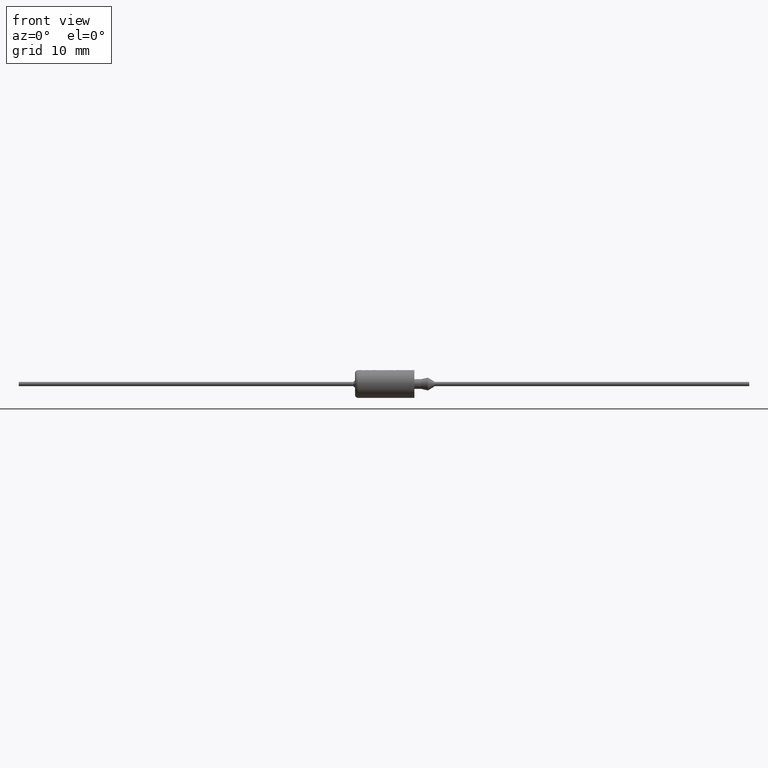
[diagram: clean part render]
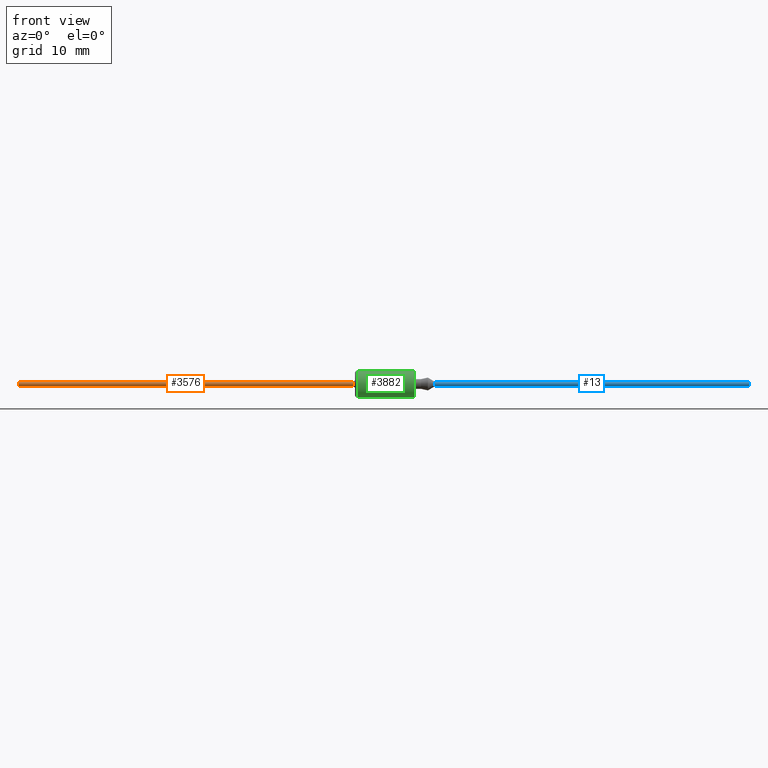
[diagram: same view with three faces highlighted in distinct colors, each labeled with its STEP entity id]
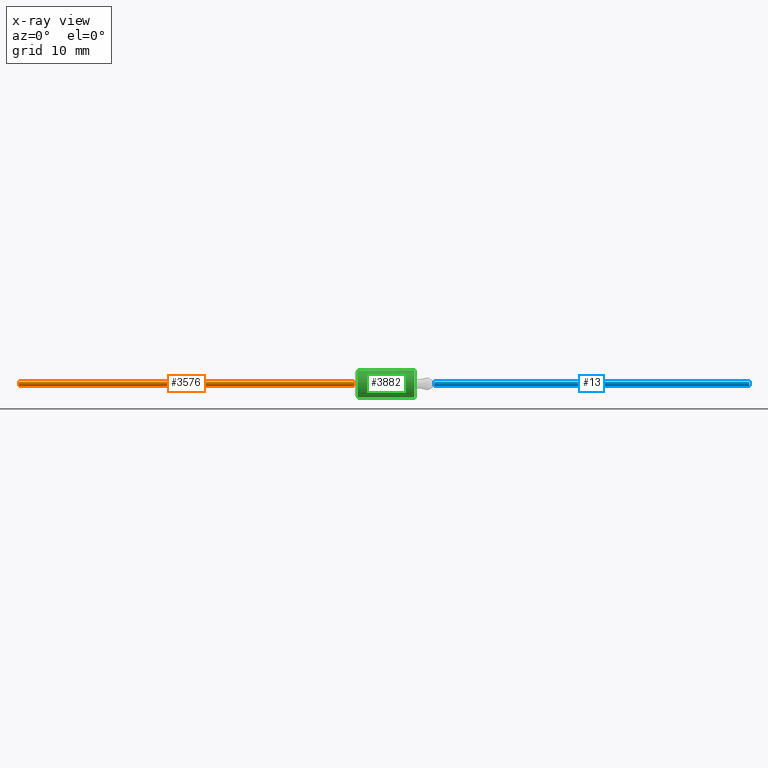
[diagram: x-ray of the same camera — body ghosted, the three highlighted faces saturated]
A machine part, front view with three faces highlighted in distinct colors.
The next image is the same camera in x-ray (body ghosted, the three faces saturated) — at least one of them is partly hidden behind the body in this view.
Their STEP definitions:

[orange] entity #3576 — the highlighted cylindrical surface (edge-blend (fillet) strip) has radius 0.28 mm, axis along (1, -0, -0).
#324 = FACE_OUTER_BOUND ( 'NONE', #1618, .T. ) ;
#480 = DIRECTION ( 'NONE',  ( 0.0000000000000000000, 0.0000000000000000000, 1.000000000000000000 ) ) ;
#537 = EDGE_CURVE ( 'NONE', #4257, #1646, #3640, .T. ) ;
#587 = EDGE_CURVE ( 'NONE', #870, #4257, #3962, .T. ) ;
#652 = DIRECTION ( 'NONE',  ( -1.000000000000000000, 0.0000000000000000000, 0.0000000000000000000 ) ) ;
#684 = AXIS2_PLACEMENT_3D ( 'NONE', #3019, #652, #4046 ) ;
#870 = VERTEX_POINT ( 'NONE', #4342 ) ;
#924 = CYLINDRICAL_SURFACE ( 'NONE', #2526, 0.2800000000000000300 ) ;
#1010 = CARTESIAN_POINT ( 'NONE',  ( -44.61999999999999700, 0.0000000000000000000, -0.2800000000000000300 ) ) ;
#1064 = CIRCLE ( 'NONE', #1939, 0.2800000000000000300 ) ;
#1223 = VERTEX_POINT ( 'NONE', #1898 ) ;
#1337 = LINE ( 'NONE', #3779, #3528 ) ;
#1517 = CARTESIAN_POINT ( 'NONE',  ( -44.61999999999999700, 0.0000000000000000000, 0.0000000000000000000 ) ) ;
#1546 = CARTESIAN_POINT ( 'NONE',  ( -0.1699999999999999800, 0.0000000000000000000, -0.2800000000000000300 ) ) ;
#1618 = EDGE_LOOP ( 'NONE', ( #1683, #3651, #3462, #4352 ) ) ;
#1646 = VERTEX_POINT ( 'NONE', #3335 ) ;
#1683 = ORIENTED_EDGE ( 'NONE', *, *, #2130, .F. ) ;
#1702 = DIRECTION ( 'NONE',  ( 1.000000000000000000, -0.0000000000000000000, -0.0000000000000000000 ) ) ;
#1898 = CARTESIAN_POINT ( 'NONE',  ( -44.61999999999999700, 3.429011037612589400E-017, 0.2800000000000000300 ) ) ;
#1939 = AXIS2_PLACEMENT_3D ( 'NONE', #1517, #2574, #480 ) ;
#1945 = CARTESIAN_POINT ( 'NONE',  ( -44.61999999999999700, 0.0000000000000000000, 0.0000000000000000000 ) ) ;
#2130 = EDGE_CURVE ( 'NONE', #1223, #1646, #1337, .T. ) ;
#2526 = AXIS2_PLACEMENT_3D ( 'NONE', #1945, #2604, #3975 ) ;
#2574 = DIRECTION ( 'NONE',  ( -1.000000000000000000, 0.0000000000000000000, 0.0000000000000000000 ) ) ;
#2604 = DIRECTION ( 'NONE',  ( 1.000000000000000000, -0.0000000000000000000, -0.0000000000000000000 ) ) ;
#2688 = EDGE_CURVE ( 'NONE', #870, #1223, #1064, .T. ) ;
#2830 = DIRECTION ( 'NONE',  ( 1.000000000000000000, -0.0000000000000000000, -0.0000000000000000000 ) ) ;
#3019 = CARTESIAN_POINT ( 'NONE',  ( -0.1699999999999999800, 0.0000000000000000000, 0.0000000000000000000 ) ) ;
#3335 = CARTESIAN_POINT ( 'NONE',  ( -0.1699999999999999800, 3.429011037612589400E-017, 0.2800000000000000300 ) ) ;
#3462 = ORIENTED_EDGE ( 'NONE', *, *, #587, .T. ) ;
#3528 = VECTOR ( 'NONE', #2830, 1000.000000000000000 ) ;
#3576 = ADVANCED_FACE ( 'NONE', ( #324 ), #924, .T. ) ;
#3640 = CIRCLE ( 'NONE', #684, 0.2800000000000000300 ) ;
#3651 = ORIENTED_EDGE ( 'NONE', *, *, #2688, .F. ) ;
#3779 = CARTESIAN_POINT ( 'NONE',  ( -44.61999999999999700, 3.429011037612589400E-017, 0.2800000000000000300 ) ) ;
#3962 = LINE ( 'NONE', #1010, #4070 ) ;
#3975 = DIRECTION ( 'NONE',  ( 0.0000000000000000000, 0.0000000000000000000, -1.000000000000000000 ) ) ;
#4046 = DIRECTION ( 'NONE',  ( 0.0000000000000000000, 0.0000000000000000000, 1.000000000000000000 ) ) ;
#4070 = VECTOR ( 'NONE', #1702, 1000.000000000000000 ) ;
#4257 = VERTEX_POINT ( 'NONE', #1546 ) ;
#4342 = CARTESIAN_POINT ( 'NONE',  ( -44.61999999999999700, 0.0000000000000000000, -0.2800000000000000300 ) ) ;
#4352 = ORIENTED_EDGE ( 'NONE', *, *, #537, .T. ) ;

[blue] entity #13 — the highlighted cylindrical surface (edge-blend (fillet) strip) has radius 0.28 mm, axis along (-1, -0, -0).
#13 = ADVANCED_FACE ( 'NONE', ( #2301 ), #946, .T. ) ;
#271 = DIRECTION ( 'NONE',  ( 1.000000000000000000, 0.0000000000000000000, 0.0000000000000000000 ) ) ;
#331 = AXIS2_PLACEMENT_3D ( 'NONE', #2335, #271, #2652 ) ;
#354 = EDGE_CURVE ( 'NONE', #4312, #1460, #2498, .T. ) ;
#364 = ORIENTED_EDGE ( 'NONE', *, *, #1739, .T. ) ;
#395 = ORIENTED_EDGE ( 'NONE', *, *, #874, .F. ) ;
#648 = EDGE_CURVE ( 'NONE', #4312, #1622, #3863, .T. ) ;
#874 = EDGE_CURVE ( 'NONE', #1622, #3673, #3964, .T. ) ;
#885 = CIRCLE ( 'NONE', #1150, 0.2800000000000000300 ) ;
#946 = CYLINDRICAL_SURFACE ( 'NONE', #1487, 0.2800000000000000300 ) ;
#1150 = AXIS2_PLACEMENT_3D ( 'NONE', #3629, #1613, #1957 ) ;
#1186 = ORIENTED_EDGE ( 'NONE', *, *, #648, .F. ) ;
#1460 = VERTEX_POINT ( 'NONE', #3442 ) ;
#1484 = VECTOR ( 'NONE', #1747, 1000.000000000000000 ) ;
#1487 = AXIS2_PLACEMENT_3D ( 'NONE', #3625, #2300, #1623 ) ;
#1568 = CARTESIAN_POINT ( 'NONE',  ( 52.32999999999999800, 0.0000000000000000000, 0.2800000000000000300 ) ) ;
#1613 = DIRECTION ( 'NONE',  ( 1.000000000000000000, 0.0000000000000000000, 0.0000000000000000000 ) ) ;
#1622 = VERTEX_POINT ( 'NONE', #2290 ) ;
#1623 = DIRECTION ( 'NONE',  ( 0.0000000000000000000, 0.0000000000000000000, 1.000000000000000000 ) ) ;
#1739 = EDGE_CURVE ( 'NONE', #1460, #3673, #885, .T. ) ;
#1747 = DIRECTION ( 'NONE',  ( -1.000000000000000000, -0.0000000000000000000, -0.0000000000000000000 ) ) ;
#1957 = DIRECTION ( 'NONE',  ( 0.0000000000000000000, 0.0000000000000000000, -1.000000000000000000 ) ) ;
#2290 = CARTESIAN_POINT ( 'NONE',  ( 52.32999999999999800, 3.429011037612589400E-017, -0.2800000000000000300 ) ) ;
#2300 = DIRECTION ( 'NONE',  ( -1.000000000000000000, -0.0000000000000000000, -0.0000000000000000000 ) ) ;
#2301 = FACE_OUTER_BOUND ( 'NONE', #3449, .T. ) ;
#2335 = CARTESIAN_POINT ( 'NONE',  ( 52.32999999999999800, 0.0000000000000000000, 0.0000000000000000000 ) ) ;
#2498 = LINE ( 'NONE', #4125, #1484 ) ;
#2652 = DIRECTION ( 'NONE',  ( 0.0000000000000000000, 0.0000000000000000000, -1.000000000000000000 ) ) ;
#3022 = DIRECTION ( 'NONE',  ( -1.000000000000000000, -0.0000000000000000000, -0.0000000000000000000 ) ) ;
#3081 = VECTOR ( 'NONE', #3022, 1000.000000000000000 ) ;
#3442 = CARTESIAN_POINT ( 'NONE',  ( 10.55000000000000200, 0.0000000000000000000, 0.2800000000000000300 ) ) ;
#3449 = EDGE_LOOP ( 'NONE', ( #395, #1186, #3996, #364 ) ) ;
#3625 = CARTESIAN_POINT ( 'NONE',  ( 52.32999999999999800, 0.0000000000000000000, 0.0000000000000000000 ) ) ;
#3629 = CARTESIAN_POINT ( 'NONE',  ( 10.55000000000000200, 0.0000000000000000000, 0.0000000000000000000 ) ) ;
#3664 = CARTESIAN_POINT ( 'NONE',  ( 52.32999999999999800, 3.429011037612589400E-017, -0.2800000000000000300 ) ) ;
#3673 = VERTEX_POINT ( 'NONE', #4343 ) ;
#3863 = CIRCLE ( 'NONE', #331, 0.2800000000000000300 ) ;
#3964 = LINE ( 'NONE', #3664, #3081 ) ;
#3996 = ORIENTED_EDGE ( 'NONE', *, *, #354, .T. ) ;
#4125 = CARTESIAN_POINT ( 'NONE',  ( 52.32999999999999800, 0.0000000000000000000, 0.2800000000000000300 ) ) ;
#4312 = VERTEX_POINT ( 'NONE', #1568 ) ;
#4343 = CARTESIAN_POINT ( 'NONE',  ( 10.55000000000000200, 3.429011037612589400E-017, -0.2800000000000000300 ) ) ;

[green] entity #3882 — the highlighted cylindrical surface (edge-blend (fillet) strip) has radius 1.84 mm, axis along (-1, -0, -0).
#3 = CARTESIAN_POINT ( 'NONE',  ( 3.610336656415432400, -0.1669809780252438100, 1.839761919890829500 ) ) ;
#7 = VERTEX_POINT ( 'NONE', #967 ) ;
#12 = CARTESIAN_POINT ( 'NONE',  ( 3.939984700960379000, -0.3338449827319022700, 1.817184786276131700 ) ) ;
#16 = ORIENTED_EDGE ( 'NONE', *, *, #1803, .F. ) ;
#23 = VERTEX_POINT ( 'NONE', #928 ) ;
#28 = EDGE_CURVE ( 'NONE', #720, #2630, #3366, .T. ) ;
#31 = B_SPLINE_CURVE_WITH_KNOTS ( 'NONE', 3,
 ( #3865, #1853, #428, #2198 ),
 .UNSPECIFIED., .F., .F.,
 ( 4, 4 ),
 ( 0.4414835254606975200, 1.000000000000000000 ),
 .UNSPECIFIED. ) ;
#32 = CARTESIAN_POINT ( 'NONE',  ( 4.947171056527291300, -0.4950444796869384300, 1.772154328248950300 ) ) ;
#56 = DIRECTION ( 'NONE',  ( 1.000000000000000000, 0.0000000000000000000, 0.0000000000000000000 ) ) ;
#67 = ORIENTED_EDGE ( 'NONE', *, *, #1870, .F. ) ;
#69 = CARTESIAN_POINT ( 'NONE',  ( 7.880000000000001700, 0.0000000000000000000, 1.840000000000000100 ) ) ;
#83 = LINE ( 'NONE', #1305, #2377 ) ;
#126 = DIRECTION ( 'NONE',  ( 0.0000000000000000000, 0.0000000000000000000, -1.000000000000000000 ) ) ;
#131 = CARTESIAN_POINT ( 'NONE',  ( 3.914628524202696800, -2.048666033496737600E-008, 1.839846082543360500 ) ) ;
#141 = EDGE_CURVE ( 'NONE', #3639, #2630, #2029, .T. ) ;
#147 = VERTEX_POINT ( 'NONE', #3977 ) ;
#151 = CARTESIAN_POINT ( 'NONE',  ( 2.641702550035737400, -0.4950444796869384300, 1.772154328248950300 ) ) ;
#152 = DIRECTION ( 'NONE',  ( 1.000000000000000000, 0.0000000000000000000, 0.0000000000000000000 ) ) ;
#162 = CARTESIAN_POINT ( 'NONE',  ( 4.707904748187332600, -0.3079404732484836700, 1.814048694201867400 ) ) ;
#187 = B_SPLINE_CURVE_WITH_KNOTS ( 'NONE', 3,
 ( #3232, #1578, #840, #3574 ),
 .UNSPECIFIED., .F., .F.,
 ( 4, 4 ),
 ( 0.0000000000000000000, 1.000000000000000000 ),
 .UNSPECIFIED. ) ;
#218 = DIRECTION ( 'NONE',  ( -1.000000000000000000, -0.0000000000000000000, -0.0000000000000000000 ) ) ;
#264 = EDGE_CURVE ( 'NONE', #4152, #3268, #2278, .T. ) ;
#266 = ORIENTED_EDGE ( 'NONE', *, *, #826, .T. ) ;
#289 = CARTESIAN_POINT ( 'NONE',  ( 3.818644339186226100, -0.3338449689229003300, 1.817184790133623100 ) ) ;
#294 = CARTESIAN_POINT ( 'NONE',  ( 4.947171056527291300, -0.4950444796869384300, 1.772154328248950300 ) ) ;
#312 = DIRECTION ( 'NONE',  ( -1.000000000000000000, -0.0000000000000000000, -0.0000000000000000000 ) ) ;
#336 = CARTESIAN_POINT ( 'NONE',  ( 0.4000000000000001900, 2.253350110431129800E-016, -1.840000000000000100 ) ) ;
#350 = LINE ( 'NONE', #890, #2747 ) ;
#394 = CARTESIAN_POINT ( 'NONE',  ( 1.735129680208025600, -0.4950444796869384300, 1.772154328248950300 ) ) ;
#398 = ORIENTED_EDGE ( 'NONE', *, *, #1920, .F. ) ;
#406 = CARTESIAN_POINT ( 'NONE',  ( 1.248861027439441600, -0.3340997468915223300, 1.817113618890294500 ) ) ;
#407 = AXIS2_PLACEMENT_3D ( 'NONE', #2748, #2442, #2111 ) ;
#428 = CARTESIAN_POINT ( 'NONE',  ( 3.037896799488513500, -0.3339188745447122500, 1.817164144883086900 ) ) ;
#438 = VERTEX_POINT ( 'NONE', #131 ) ;
#446 = DIRECTION ( 'NONE',  ( -1.000000000000000000, -0.0000000000000000000, -0.0000000000000000000 ) ) ;
#448 = EDGE_CURVE ( 'NONE', #3474, #4247, #2483, .T. ) ;
#468 = CARTESIAN_POINT ( 'NONE',  ( 4.743048282823592000, -0.03925802593109178900, 1.839685872154034100 ) ) ;
#478 = VECTOR ( 'NONE', #3313, 1000.000000000000000 ) ;
#503 = AXIS2_PLACEMENT_3D ( 'NONE', #2605, #4323, #1260 ) ;
#527 = VERTEX_POINT ( 'NONE', #1538 ) ;
#545 = CARTESIAN_POINT ( 'NONE',  ( 1.414902557476005900, 2.458944981940675600E-008, 1.839998400632419700 ) ) ;
#556 = CARTESIAN_POINT ( 'NONE',  ( 0.7967368807645235400, -2.047476104401469700E-008, 1.839846085404367700 ) ) ;
#558 = VECTOR ( 'NONE', #2509, 1000.000000000000000 ) ;
#589 = CARTESIAN_POINT ( 'NONE',  ( 0.6526948067485339700, -0.4950444796869384300, 1.772154328248950500 ) ) ;
#624 = ORIENTED_EDGE ( 'NONE', *, *, #851, .T. ) ;
#633 = CARTESIAN_POINT ( 'NONE',  ( 7.880000000000001700, 0.0000000000000000000, 1.840000000000000100 ) ) ;
#646 = CARTESIAN_POINT ( 'NONE',  ( 0.4000000000000001900, 0.0000000000000000000, 1.840000000000000100 ) ) ;
#653 = VERTEX_POINT ( 'NONE', #2697 ) ;
#675 = VECTOR ( 'NONE', #3439, 1000.000000000000000 ) ;
#690 = ORIENTED_EDGE ( 'NONE', *, *, #3718, .F. ) ;
#700 = DIRECTION ( 'NONE',  ( -1.000000000000000000, -0.0000000000000000000, -0.0000000000000000000 ) ) ;
#720 = VERTEX_POINT ( 'NONE', #4082 ) ;
#723 = CARTESIAN_POINT ( 'NONE',  ( 1.735129680208025600, -0.4950444796869384300, 1.772154328248950300 ) ) ;
#751 = CARTESIAN_POINT ( 'NONE',  ( 1.114748931076166000, 2.327949607153059500E-008, 1.839998402098288900 ) ) ;
#773 = CARTESIAN_POINT ( 'NONE',  ( 1.831326895485177100, -0.1669213878654337000, 1.839694467969701800 ) ) ;
#780 = VECTOR ( 'NONE', #1357, 1000.000000000000000 ) ;
#826 = EDGE_CURVE ( 'NONE', #1829, #438, #2499, .T. ) ;
#840 = CARTESIAN_POINT ( 'NONE',  ( 4.281052528404723400, -0.1423381916653010400, 1.836385781934977100 ) ) ;
#849 = ORIENTED_EDGE ( 'NONE', *, *, #1327, .F. ) ;
#851 = EDGE_CURVE ( 'NONE', #3948, #1998, #990, .T. ) ;
#863 = VERTEX_POINT ( 'NONE', #2640 ) ;
#871 = VERTEX_POINT ( 'NONE', #980 ) ;
#873 = LINE ( 'NONE', #3698, #1740 ) ;
#890 = CARTESIAN_POINT ( 'NONE',  ( 7.880000000000001700, 2.253350110431129800E-016, -1.840000000000000100 ) ) ;
#894 = B_SPLINE_CURVE_WITH_KNOTS ( 'NONE', 3,
 ( #3958, #1627, #4308, #4322 ),
 .UNSPECIFIED., .F., .F.,
 ( 4, 4 ),
 ( 0.0000000000000000000, 0.5558340392178818800 ),
 .UNSPECIFIED. ) ;
#928 = CARTESIAN_POINT ( 'NONE',  ( 1.622661293356938600, -0.4950444796869384300, 1.772154328248950300 ) ) ;
#959 = DIRECTION ( 'NONE',  ( 1.000000000000000000, 0.0000000000000000000, 0.0000000000000000000 ) ) ;
#963 = VERTEX_POINT ( 'NONE', #394 ) ;
#967 = CARTESIAN_POINT ( 'NONE',  ( 7.880000000000001700, 2.253350110431129800E-016, -1.840000000000000100 ) ) ;
#980 = CARTESIAN_POINT ( 'NONE',  ( 4.233375229108257400, -0.3079404732484836700, 1.814048694201867400 ) ) ;
#990 = LINE ( 'NONE', #2656, #1424 ) ;
#998 = VECTOR ( 'NONE', #3688, 1000.000000000000000 ) ;
#1003 = VERTEX_POINT ( 'NONE', #1060 ) ;
#1009 = CARTESIAN_POINT ( 'NONE',  ( 2.917103915189497100, -0.1669831286195373200, 1.839764671092533700 ) ) ;
#1022 = EDGE_CURVE ( 'NONE', #3099, #2158, #2997, .T. ) ;
#1060 = CARTESIAN_POINT ( 'NONE',  ( 0.9393454066262095800, -0.4950444796869384300, 1.772154328248950300 ) ) ;
#1079 = EDGE_CURVE ( 'NONE', #2471, #2042, #3929, .T. ) ;
#1102 = ORIENTED_EDGE ( 'NONE', *, *, #1320, .T. ) ;
#1106 = CARTESIAN_POINT ( 'NONE',  ( 7.880000000000001700, 0.0000000000000000000, 1.840000000000000100 ) ) ;
#1174 = EDGE_CURVE ( 'NONE', #1392, #2646, #31, .T. ) ;
#1184 = CARTESIAN_POINT ( 'NONE',  ( 0.4000000000000001900, 0.0000000000000000000, 0.0000000000000000000 ) ) ;
#1198 = ORIENTED_EDGE ( 'NONE', *, *, #3466, .F. ) ;
#1247 = EDGE_CURVE ( 'NONE', #3099, #4360, #3637, .T. ) ;
#1260 = DIRECTION ( 'NONE',  ( 0.0000000000000000000, 0.0000000000000000000, 1.000000000000000000 ) ) ;
#1270 = CARTESIAN_POINT ( 'NONE',  ( 4.737440619916519300, -0.05887705482151303600, 1.839057772995602400 ) ) ;
#1305 = CARTESIAN_POINT ( 'NONE',  ( 4.947171056527291300, -0.4950444796869384300, 1.772154328248950300 ) ) ;
#1320 = EDGE_CURVE ( 'NONE', #1392, #527, #3971, .T. ) ;
#1323 = CARTESIAN_POINT ( 'NONE',  ( 4.036011524738494700, -2.050099939516143600E-008, 1.839846079611546600 ) ) ;
#1327 = EDGE_CURVE ( 'NONE', #7, #1833, #350, .T. ) ;
#1330 = CARTESIAN_POINT ( 'NONE',  ( 2.965051254456224000, 2.335984371211593500E-007, 1.839900160349534600 ) ) ;
#1340 = CARTESIAN_POINT ( 'NONE',  ( 3.987998499513107500, -0.1669213810520809900, 1.839694473655496300 ) ) ;
#1347 = CARTESIAN_POINT ( 'NONE',  ( 3.658289675885990600, 2.289484412513208700E-007, 1.839898200607482000 ) ) ;
#1357 = DIRECTION ( 'NONE',  ( 1.000000000000000000, 0.0000000000000000000, 0.0000000000000000000 ) ) ;
#1377 = ORIENTED_EDGE ( 'NONE', *, *, #1022, .T. ) ;
#1392 = VERTEX_POINT ( 'NONE', #2379 ) ;
#1395 = DIRECTION ( 'NONE',  ( -1.000000000000000000, 0.0000000000000000000, 0.0000000000000000000 ) ) ;
#1401 = VERTEX_POINT ( 'NONE', #4379 ) ;
#1403 = ORIENTED_EDGE ( 'NONE', *, *, #1247, .F. ) ;
#1412 = VECTOR ( 'NONE', #3956, 1000.000000000000000 ) ;
#1424 = VECTOR ( 'NONE', #312, 1000.000000000000000 ) ;
#1429 = VERTEX_POINT ( 'NONE', #2727 ) ;
#1452 = CARTESIAN_POINT ( 'NONE',  ( 1.315936966647326600, -0.4950444796869379900, 1.772154328248950500 ) ) ;
#1530 = CARTESIAN_POINT ( 'NONE',  ( 0.9393454066262095800, -0.4950444796869384300, 1.772154328248950300 ) ) ;
#1532 = EDGE_LOOP ( 'NONE', ( #849, #2103, #4138, #3370, #690, #4051, #2211, #2272, #2469, #3687, #1792, #3140, #2525, #16, #266, #1564, #2421, #1403, #1377, #2411, #1198, #2032, #1102, #2054, #4043, #4047, #2455, #2049, #398, #67, #4206, #624, #1759, #2387, #4290, #2225, #4091 ) ) ;
#1538 = CARTESIAN_POINT ( 'NONE',  ( 2.965051254456224000, 2.335984371211593500E-007, 1.839900160349534600 ) ) ;
#1564 = ORIENTED_EDGE ( 'NONE', *, *, #2341, .F. ) ;
#1566 = CARTESIAN_POINT ( 'NONE',  ( 3.028519480344098000, -0.4950444796869384300, 1.772154328248950300 ) ) ;
#1578 = CARTESIAN_POINT ( 'NONE',  ( 4.257214218643327700, -0.2256143122484079700, 1.828023819048363500 ) ) ;
#1627 = CARTESIAN_POINT ( 'NONE',  ( 3.385560512929038700, -0.3339520443013177000, 1.817154879039453400 ) ) ;
#1640 = VECTOR ( 'NONE', #2689, 1000.000000000000000 ) ;
#1665 = DIRECTION ( 'NONE',  ( 1.000000000000000000, 0.0000000000000000000, 0.0000000000000000000 ) ) ;
#1679 = CARTESIAN_POINT ( 'NONE',  ( 1.315936966647326600, -0.4950444796869384300, 1.772154328248950300 ) ) ;
#1700 = CARTESIAN_POINT ( 'NONE',  ( 3.514356370823135100, -0.4950444796869384300, 1.772154328248950300 ) ) ;
#1708 = EDGE_CURVE ( 'NONE', #2814, #1003, #1775, .T. ) ;
#1727 = CARTESIAN_POINT ( 'NONE',  ( 3.514356370823135100, -0.4950444796869384300, 1.772154328248950300 ) ) ;
#1740 = VECTOR ( 'NONE', #959, 1000.000000000000000 ) ;
#1744 = CARTESIAN_POINT ( 'NONE',  ( 1.083005432928454000, 1.285823097327124800E-008, 1.839998413719408100 ) ) ;
#1759 = ORIENTED_EDGE ( 'NONE', *, *, #3784, .F. ) ;
#1774 = EDGE_CURVE ( 'NONE', #4152, #4247, #2443, .T. ) ;
#1775 = LINE ( 'NONE', #4321, #478 ) ;
#1792 = ORIENTED_EDGE ( 'NONE', *, *, #2462, .F. ) ;
#1798 = CARTESIAN_POINT ( 'NONE',  ( 4.754263570849274400, -2.122417524912936200E-010, 1.839999814307774900 ) ) ;
#1803 = EDGE_CURVE ( 'NONE', #1829, #863, #2681, .T. ) ;
#1807 = CARTESIAN_POINT ( 'NONE',  ( 2.821136955495841600, -0.4950444796869384300, 1.772154328248950300 ) ) ;
#1829 = VERTEX_POINT ( 'NONE', #1323 ) ;
#1833 = VERTEX_POINT ( 'NONE', #336 ) ;
#1835 = CARTESIAN_POINT ( 'NONE',  ( 3.658289675885990600, 2.289484412513208700E-007, 1.839898200607482000 ) ) ;
#1837 = B_SPLINE_CURVE_WITH_KNOTS ( 'NONE', 3,
 ( #1530, #4294, #2021, #2713 ),
 .UNSPECIFIED., .F., .F.,
 ( 4, 4 ),
 ( 0.0000000000000000000, 0.9157207766040325000 ),
 .UNSPECIFIED. ) ;
#1840 = CARTESIAN_POINT ( 'NONE',  ( 4.754263570849274400, -2.122417524912936200E-010, 1.839999814307774900 ) ) ;
#1853 = CARTESIAN_POINT ( 'NONE',  ( 3.047254252754571600, -0.1669785681192463000, 1.839768980037552300 ) ) ;
#1862 = VERTEX_POINT ( 'NONE', #646 ) ;
#1870 = EDGE_CURVE ( 'NONE', #1429, #23, #2837, .T. ) ;
#1920 = EDGE_CURVE ( 'NONE', #23, #2042, #3808, .T. ) ;
#1949 = EDGE_CURVE ( 'NONE', #2471, #963, #2250, .T. ) ;
#1989 = CARTESIAN_POINT ( 'NONE',  ( 1.114748931076166000, 2.327949607153059500E-008, 1.839998402098288900 ) ) ;
#1998 = VERTEX_POINT ( 'NONE', #1744 ) ;
#1999 = CARTESIAN_POINT ( 'NONE',  ( 3.866636818205363200, -0.1669213740748946600, 1.839694479478006600 ) ) ;
#2020 = CARTESIAN_POINT ( 'NONE',  ( 3.562395165250718900, -0.3339275723059007600, 1.817161715197029400 ) ) ;
#2021 = CARTESIAN_POINT ( 'NONE',  ( 1.035112999631022900, -0.1670910478314085500, 1.839975938909036400 ) ) ;
#2029 = LINE ( 'NONE', #3510, #4022 ) ;
#2032 = ORIENTED_EDGE ( 'NONE', *, *, #1174, .F. ) ;
#2042 = VERTEX_POINT ( 'NONE', #545 ) ;
#2043 = CARTESIAN_POINT ( 'NONE',  ( 3.770523965662926800, -0.4950444796869384300, 1.772154328248950300 ) ) ;
#2049 = ORIENTED_EDGE ( 'NONE', *, *, #1079, .T. ) ;
#2052 = B_SPLINE_CURVE_WITH_KNOTS ( 'NONE', 3,
 ( #3923, #2921, #2864, #162 ),
 .UNSPECIFIED., .F., .F.,
 ( 4, 4 ),
 ( 0.0000000000000000000, 1.000000000000000000 ),
 .UNSPECIFIED. ) ;
#2054 = ORIENTED_EDGE ( 'NONE', *, *, #3810, .F. ) ;
#2089 = CARTESIAN_POINT ( 'NONE',  ( 1.181819180778594000, -0.1670898027267265800, 1.839975764836171200 ) ) ;
#2103 = ORIENTED_EDGE ( 'NONE', *, *, #4205, .F. ) ;
#2109 = CARTESIAN_POINT ( 'NONE',  ( 3.891842957260162300, -0.4950444796869384300, 1.772154328248950300 ) ) ;
#2111 = DIRECTION ( 'NONE',  ( 0.0000000000000000000, 0.0000000000000000000, -1.000000000000000000 ) ) ;
#2158 = VERTEX_POINT ( 'NONE', #2467 ) ;
#2160 = VERTEX_POINT ( 'NONE', #3547 ) ;
#2198 = CARTESIAN_POINT ( 'NONE',  ( 3.028519480344098000, -0.4950444796869384300, 1.772154328248950300 ) ) ;
#2204 = CARTESIAN_POINT ( 'NONE',  ( 5.091276693388358000, 2.606793434676399300E-007, 1.839935304816412700 ) ) ;
#2211 = ORIENTED_EDGE ( 'NONE', *, *, #1774, .T. ) ;
#2225 = ORIENTED_EDGE ( 'NONE', *, *, #2537, .T. ) ;
#2250 = B_SPLINE_CURVE_WITH_KNOTS ( 'NONE', 3,
 ( #3436, #773, #3827, #723 ),
 .UNSPECIFIED., .F., .F.,
 ( 4, 4 ),
 ( 0.5027971396065609200, 1.000000000000000000 ),
 .UNSPECIFIED. ) ;
#2272 = ORIENTED_EDGE ( 'NONE', *, *, #448, .F. ) ;
#2278 = B_SPLINE_CURVE_WITH_KNOTS ( 'NONE', 3,
 ( #3048, #3721, #2362, #294 ),
 .UNSPECIFIED., .F., .F.,
 ( 4, 4 ),
 ( 0.3837827606520817800, 1.000000000000000000 ),
 .UNSPECIFIED. ) ;
#2292 = DIRECTION ( 'NONE',  ( -1.000000000000000000, -0.0000000000000000000, -0.0000000000000000000 ) ) ;
#2302 = B_SPLINE_CURVE_WITH_KNOTS ( 'NONE', 3,
 ( #4100, #3114, #1009, #1330 ),
 .UNSPECIFIED., .F., .F.,
 ( 4, 4 ),
 ( 0.0000000000000000000, 0.5585148087246896200 ),
 .UNSPECIFIED. ) ;
#2328 = CARTESIAN_POINT ( 'NONE',  ( 5.378397624818455300, 2.605604261437166200E-007, 1.839935305401931200 ) ) ;
#2329 = LINE ( 'NONE', #151, #558 ) ;
#2341 = EDGE_CURVE ( 'NONE', #3181, #438, #3484, .T. ) ;
#2347 = EDGE_CURVE ( 'NONE', #963, #2160, #2964, .T. ) ;
#2362 = CARTESIAN_POINT ( 'NONE',  ( 4.995250244043255300, -0.3339850618240742800, 1.817145655721758200 ) ) ;
#2377 = VECTOR ( 'NONE', #3041, 1000.000000000000000 ) ;
#2379 = CARTESIAN_POINT ( 'NONE',  ( 3.056614171999809200, 4.889378654091928200E-008, 1.839902004779462500 ) ) ;
#2387 = ORIENTED_EDGE ( 'NONE', *, *, #1708, .F. ) ;
#2411 = ORIENTED_EDGE ( 'NONE', *, *, #3584, .F. ) ;
#2421 = ORIENTED_EDGE ( 'NONE', *, *, #2454, .F. ) ;
#2442 = DIRECTION ( 'NONE',  ( 1.000000000000000000, 0.0000000000000000000, 0.0000000000000000000 ) ) ;
#2443 = LINE ( 'NONE', #2690, #3012 ) ;
#2454 = EDGE_CURVE ( 'NONE', #4360, #3181, #3489, .T. ) ;
#2455 = ORIENTED_EDGE ( 'NONE', *, *, #1949, .F. ) ;
#2461 = CARTESIAN_POINT ( 'NONE',  ( 4.748655930082395400, -0.01962900327136263300, 1.839999761842838500 ) ) ;
#2462 = EDGE_CURVE ( 'NONE', #3357, #871, #4062, .T. ) ;
#2467 = CARTESIAN_POINT ( 'NONE',  ( 3.561858541702056500, 5.907816322265930600E-007, 1.839894305436878600 ) ) ;
#2469 = ORIENTED_EDGE ( 'NONE', *, *, #3921, .F. ) ;
#2471 = VERTEX_POINT ( 'NONE', #2750 ) ;
#2483 = B_SPLINE_CURVE_WITH_KNOTS ( 'NONE', 3,
 ( #4180, #468, #2461, #1798 ),
 .UNSPECIFIED., .F., .F.,
 ( 4, 4 ),
 ( 0.0000000000000000000, 0.3160451113352197300 ),
 .UNSPECIFIED. ) ;
#2499 = LINE ( 'NONE', #4284, #675 ) ;
#2509 = DIRECTION ( 'NONE',  ( 1.000000000000000000, 0.0000000000000000000, 0.0000000000000000000 ) ) ;
#2525 = ORIENTED_EDGE ( 'NONE', *, *, #3746, .F. ) ;
#2537 = EDGE_CURVE ( 'NONE', #653, #1862, #3338, .T. ) ;
#2605 = CARTESIAN_POINT ( 'NONE',  ( 7.880000000000001700, 0.0000000000000000000, 0.0000000000000000000 ) ) ;
#2620 = VECTOR ( 'NONE', #56, 1000.000000000000000 ) ;
#2630 = VERTEX_POINT ( 'NONE', #3272 ) ;
#2637 = EDGE_CURVE ( 'NONE', #871, #1401, #187, .T. ) ;
#2640 = CARTESIAN_POINT ( 'NONE',  ( 3.891842957260162300, -0.4950444796869384300, 1.772154328248950300 ) ) ;
#2646 = VERTEX_POINT ( 'NONE', #3909 ) ;
#2656 = CARTESIAN_POINT ( 'NONE',  ( 7.880000000000001700, 0.0000000000000000000, 1.840000000000000100 ) ) ;
#2675 = CIRCLE ( 'NONE', #407, 1.840000000000000100 ) ;
#2681 = B_SPLINE_CURVE_WITH_KNOTS ( 'NONE', 3,
 ( #4347, #1340, #12, #3408 ),
 .UNSPECIFIED., .F., .F.,
 ( 4, 4 ),
 ( 0.5027971397012343000, 1.000000000000000000 ),
 .UNSPECIFIED. ) ;
#2689 = DIRECTION ( 'NONE',  ( 1.000000000000000000, 0.0000000000000000000, 0.0000000000000000000 ) ) ;
#2690 = CARTESIAN_POINT ( 'NONE',  ( 7.880000000000001700, 0.0000000000000000000, 1.840000000000000100 ) ) ;
#2697 = CARTESIAN_POINT ( 'NONE',  ( 0.7967368807645235400, -2.047476104401469700E-008, 1.839846085404367700 ) ) ;
#2713 = CARTESIAN_POINT ( 'NONE',  ( 1.083005432928454000, 1.285823097327124800E-008, 1.839998413719408100 ) ) ;
#2715 = EDGE_CURVE ( 'NONE', #4027, #3357, #2052, .T. ) ;
#2727 = CARTESIAN_POINT ( 'NONE',  ( 1.315936966647326600, -0.4950444796869379900, 1.772154328248950500 ) ) ;
#2747 = VECTOR ( 'NONE', #218, 1000.000000000000000 ) ;
#2748 = CARTESIAN_POINT ( 'NONE',  ( 7.880000000000001700, 0.0000000000000000000, 0.0000000000000000000 ) ) ;
#2749 = EDGE_CURVE ( 'NONE', #653, #2814, #4212, .T. ) ;
#2750 = CARTESIAN_POINT ( 'NONE',  ( 1.879360732209520500, -2.051499111517059300E-008, 1.839846076748572500 ) ) ;
#2773 = CARTESIAN_POINT ( 'NONE',  ( 4.707904748187332600, -0.3079404732484836700, 1.814048694201867400 ) ) ;
#2781 = CARTESIAN_POINT ( 'NONE',  ( 7.880000000000001700, 0.0000000000000000000, 1.840000000000000100 ) ) ;
#2814 = VERTEX_POINT ( 'NONE', #589 ) ;
#2837 = LINE ( 'NONE', #1679, #3117 ) ;
#2846 = LINE ( 'NONE', #2109, #2620 ) ;
#2851 = DIRECTION ( 'NONE',  ( -1.000000000000000000, -0.0000000000000000000, -0.0000000000000000000 ) ) ;
#2864 = CARTESIAN_POINT ( 'NONE',  ( 4.689760990593663700, -0.3709801153866570400, 1.803347516611932400 ) ) ;
#2921 = CARTESIAN_POINT ( 'NONE',  ( 4.671617412987115100, -0.4334607002528473300, 1.789357519619550800 ) ) ;
#2928 = EDGE_CURVE ( 'NONE', #3948, #1429, #3361, .T. ) ;
#2950 = CARTESIAN_POINT ( 'NONE',  ( 0.6526948067485339700, -0.4950444796869384300, 1.772154328248950500 ) ) ;
#2964 = LINE ( 'NONE', #2986, #1640 ) ;
#2986 = CARTESIAN_POINT ( 'NONE',  ( 1.735129680208025600, -0.4950444796869384300, 1.772154328248950300 ) ) ;
#2997 = LINE ( 'NONE', #69, #3731 ) ;
#3010 = CIRCLE ( 'NONE', #4225, 1.840000000000000100 ) ;
#3012 = VECTOR ( 'NONE', #4024, 1000.000000000000000 ) ;
#3041 = DIRECTION ( 'NONE',  ( 1.000000000000000000, 0.0000000000000000000, 0.0000000000000000000 ) ) ;
#3043 = CARTESIAN_POINT ( 'NONE',  ( 3.914628524202696800, -2.048666033496737600E-008, 1.839846082543360500 ) ) ;
#3045 = EDGE_CURVE ( 'NONE', #1862, #1833, #3010, .T. ) ;
#3048 = CARTESIAN_POINT ( 'NONE',  ( 5.091276693388358000, 2.606793434676399300E-007, 1.839935304816412700 ) ) ;
#3064 = CARTESIAN_POINT ( 'NONE',  ( 4.653473655393446200, -0.4950444796869384300, 1.772154328248950300 ) ) ;
#3065 = CARTESIAN_POINT ( 'NONE',  ( 4.707904748187332600, -0.3079404732484836700, 1.814048694201867400 ) ) ;
#3099 = VERTEX_POINT ( 'NONE', #1835 ) ;
#3100 = CARTESIAN_POINT ( 'NONE',  ( 1.622661293356938600, -0.4950444796869384300, 1.772154328248950300 ) ) ;
#3114 = CARTESIAN_POINT ( 'NONE',  ( 2.869168502972459000, -0.3339306190637362800, 1.817160864096974100 ) ) ;
#3117 = VECTOR ( 'NONE', #1665, 1000.000000000000000 ) ;
#3140 = ORIENTED_EDGE ( 'NONE', *, *, #2715, .F. ) ;
#3167 = CARTESIAN_POINT ( 'NONE',  ( 1.414902557476005900, 2.458944981940675600E-008, 1.839998400632419700 ) ) ;
#3181 = VERTEX_POINT ( 'NONE', #4187 ) ;
#3192 = VECTOR ( 'NONE', #1395, 1000.000000000000000 ) ;
#3194 = CARTESIAN_POINT ( 'NONE',  ( 7.880000000000001700, 0.0000000000000000000, 1.840000000000000100 ) ) ;
#3232 = CARTESIAN_POINT ( 'NONE',  ( 4.233375229108257400, -0.3079404732484836700, 1.814048694201867400 ) ) ;
#3268 = VERTEX_POINT ( 'NONE', #32 ) ;
#3272 = CARTESIAN_POINT ( 'NONE',  ( 5.378397624818455300, 2.605604261437166200E-007, 1.839935305401931200 ) ) ;
#3313 = DIRECTION ( 'NONE',  ( 1.000000000000000000, 0.0000000000000000000, 0.0000000000000000000 ) ) ;
#3338 = LINE ( 'NONE', #3194, #4078 ) ;
#3357 = VERTEX_POINT ( 'NONE', #2773 ) ;
#3361 = B_SPLINE_CURVE_WITH_KNOTS ( 'NONE', 3,
 ( #751, #2089, #406, #1452 ),
 .UNSPECIFIED., .F., .F.,
 ( 4, 4 ),
 ( 0.08427995980721041100, 1.000000000000000200 ),
 .UNSPECIFIED. ) ;
#3366 = B_SPLINE_CURVE_WITH_KNOTS ( 'NONE', 3,
 ( #4331, #3667, #4357, #2328 ),
 .UNSPECIFIED., .F., .F.,
 ( 4, 4 ),
 ( 0.0000000000000000000, 0.6162172407071003800 ),
 .UNSPECIFIED. ) ;
#3370 = ORIENTED_EDGE ( 'NONE', *, *, #28, .F. ) ;
#3408 = CARTESIAN_POINT ( 'NONE',  ( 3.891842957260162300, -0.4950444796869384300, 1.772154328248950300 ) ) ;
#3436 = CARTESIAN_POINT ( 'NONE',  ( 1.879360732209520500, -2.051499111517059300E-008, 1.839846076748572500 ) ) ;
#3439 = DIRECTION ( 'NONE',  ( -1.000000000000000000, -0.0000000000000000000, -0.0000000000000000000 ) ) ;
#3466 = EDGE_CURVE ( 'NONE', #2646, #147, #4227, .T. ) ;
#3470 = CARTESIAN_POINT ( 'NONE',  ( 1.553394799913205600, -0.3341000074073869900, 1.817113546116191800 ) ) ;
#3474 = VERTEX_POINT ( 'NONE', #1270 ) ;
#3484 = B_SPLINE_CURVE_WITH_KNOTS ( 'NONE', 3,
 ( #2043, #289, #1999, #3043 ),
 .UNSPECIFIED., .F., .F.,
 ( 4, 4 ),
 ( 0.0000000000000000000, 0.4972028602018266400 ),
 .UNSPECIFIED. ) ;
#3489 = LINE ( 'NONE', #1727, #780 ) ;
#3510 = CARTESIAN_POINT ( 'NONE',  ( 7.880000000000001700, 0.0000000000000000000, 1.840000000000000100 ) ) ;
#3547 = CARTESIAN_POINT ( 'NONE',  ( 2.641702550035737400, -0.4950444796869384300, 1.772154328248950300 ) ) ;
#3574 = CARTESIAN_POINT ( 'NONE',  ( 4.304891517939793700, -0.05887705482151303600, 1.839057772995602400 ) ) ;
#3584 = EDGE_CURVE ( 'NONE', #147, #2158, #894, .T. ) ;
#3623 = CARTESIAN_POINT ( 'NONE',  ( 0.7007943190347595300, -0.3338449554480719700, 1.817184793897764300 ) ) ;
#3630 = FACE_OUTER_BOUND ( 'NONE', #1532, .T. ) ;
#3637 = B_SPLINE_CURVE_WITH_KNOTS ( 'NONE', 3,
 ( #1347, #3, #2020, #1700 ),
 .UNSPECIFIED., .F., .F.,
 ( 4, 4 ),
 ( 0.4441626209087806700, 1.000000000000000000 ),
 .UNSPECIFIED. ) ;
#3639 = VERTEX_POINT ( 'NONE', #1106 ) ;
#3663 = CARTESIAN_POINT ( 'NONE',  ( 0.7487659862613922400, -0.1669213672676093700, 1.839694485159708600 ) ) ;
#3667 = CARTESIAN_POINT ( 'NONE',  ( 5.282398864854710200, -0.3339850567455739400, 1.817145657140417900 ) ) ;
#3687 = ORIENTED_EDGE ( 'NONE', *, *, #2637, .F. ) ;
#3688 = DIRECTION ( 'NONE',  ( -1.000000000000000000, -0.0000000000000000000, -0.0000000000000000000 ) ) ;
#3697 = CARTESIAN_POINT ( 'NONE',  ( 3.514356370823135100, -0.4950444796869384300, 1.772154328248950300 ) ) ;
#3698 = CARTESIAN_POINT ( 'NONE',  ( 4.304891517939793700, -0.05887705482151303600, 1.839057772995602400 ) ) ;
#3712 = VECTOR ( 'NONE', #446, 1000.000000000000000 ) ;
#3718 = EDGE_CURVE ( 'NONE', #3268, #720, #83, .T. ) ;
#3721 = CARTESIAN_POINT ( 'NONE',  ( 5.043254355826075400, -0.1670207641142403600, 1.839817954539009000 ) ) ;
#3731 = VECTOR ( 'NONE', #700, 1000.000000000000000 ) ;
#3746 = EDGE_CURVE ( 'NONE', #863, #4027, #2846, .T. ) ;
#3784 = EDGE_CURVE ( 'NONE', #1003, #1998, #1837, .T. ) ;
#3808 = B_SPLINE_CURVE_WITH_KNOTS ( 'NONE', 3,
 ( #3100, #3470, #3813, #3167 ),
 .UNSPECIFIED., .F., .F.,
 ( 4, 4 ),
 ( 0.0000000000000000000, 0.9157199472872447100 ),
 .UNSPECIFIED. ) ;
#3810 = EDGE_CURVE ( 'NONE', #4157, #527, #2302, .T. ) ;
#3813 = CARTESIAN_POINT ( 'NONE',  ( 1.484163223750211800, -0.1670896456807544100, 1.839975742878287000 ) ) ;
#3827 = CARTESIAN_POINT ( 'NONE',  ( 1.783292285135280800, -0.3338449962166611900, 1.817184782509216200 ) ) ;
#3865 = CARTESIAN_POINT ( 'NONE',  ( 3.056614171999809200, 4.889378654091928200E-008, 1.839902004779462500 ) ) ;
#3882 = ADVANCED_FACE ( 'NONE', ( #3630 ), #4226, .T. ) ;
#3909 = CARTESIAN_POINT ( 'NONE',  ( 3.028519480344098000, -0.4950444796869384300, 1.772154328248950300 ) ) ;
#3921 = EDGE_CURVE ( 'NONE', #1401, #3474, #873, .T. ) ;
#3923 = CARTESIAN_POINT ( 'NONE',  ( 4.653473655393446200, -0.4950444796869384300, 1.772154328248950300 ) ) ;
#3929 = LINE ( 'NONE', #2781, #3712 ) ;
#3948 = VERTEX_POINT ( 'NONE', #1989 ) ;
#3956 = DIRECTION ( 'NONE',  ( 1.000000000000000000, 0.0000000000000000000, 0.0000000000000000000 ) ) ;
#3958 = CARTESIAN_POINT ( 'NONE',  ( 3.297263422392718600, -0.4950444796869384300, 1.772154328248950300 ) ) ;
#3971 = LINE ( 'NONE', #633, #998 ) ;
#3977 = CARTESIAN_POINT ( 'NONE',  ( 3.297263422392718600, -0.4950444796869384300, 1.772154328248950300 ) ) ;
#4022 = VECTOR ( 'NONE', #2292, 1000.000000000000000 ) ;
#4024 = DIRECTION ( 'NONE',  ( -1.000000000000000000, -0.0000000000000000000, -0.0000000000000000000 ) ) ;
#4027 = VERTEX_POINT ( 'NONE', #3064 ) ;
#4043 = ORIENTED_EDGE ( 'NONE', *, *, #4148, .F. ) ;
#4047 = ORIENTED_EDGE ( 'NONE', *, *, #2347, .F. ) ;
#4051 = ORIENTED_EDGE ( 'NONE', *, *, #264, .F. ) ;
#4062 = LINE ( 'NONE', #3065, #3192 ) ;
#4078 = VECTOR ( 'NONE', #2851, 1000.000000000000000 ) ;
#4082 = CARTESIAN_POINT ( 'NONE',  ( 5.234333538760533400, -0.4950444796869384300, 1.772154328248950300 ) ) ;
#4091 = ORIENTED_EDGE ( 'NONE', *, *, #3045, .T. ) ;
#4100 = CARTESIAN_POINT ( 'NONE',  ( 2.821136955495841600, -0.4950444796869384300, 1.772154328248950300 ) ) ;
#4138 = ORIENTED_EDGE ( 'NONE', *, *, #141, .T. ) ;
#4148 = EDGE_CURVE ( 'NONE', #2160, #4157, #2329, .T. ) ;
#4152 = VERTEX_POINT ( 'NONE', #2204 ) ;
#4157 = VERTEX_POINT ( 'NONE', #1807 ) ;
#4180 = CARTESIAN_POINT ( 'NONE',  ( 4.737440619916519300, -0.05887705482151303600, 1.839057772995602400 ) ) ;
#4187 = CARTESIAN_POINT ( 'NONE',  ( 3.770523965662926800, -0.4950444796869384300, 1.772154328248950300 ) ) ;
#4205 = EDGE_CURVE ( 'NONE', #3639, #7, #2675, .T. ) ;
#4206 = ORIENTED_EDGE ( 'NONE', *, *, #2928, .F. ) ;
#4212 = B_SPLINE_CURVE_WITH_KNOTS ( 'NONE', 3,
 ( #556, #3663, #3623, #2950 ),
 .UNSPECIFIED., .F., .F.,
 ( 4, 4 ),
 ( 0.5027971398948512000, 1.000000000000000000 ),
 .UNSPECIFIED. ) ;
#4225 = AXIS2_PLACEMENT_3D ( 'NONE', #1184, #152, #126 ) ;
#4226 = CYLINDRICAL_SURFACE ( 'NONE', #503, 1.840000000000000100 ) ;
#4227 = LINE ( 'NONE', #1566, #1412 ) ;
#4247 = VERTEX_POINT ( 'NONE', #1840 ) ;
#4284 = CARTESIAN_POINT ( 'NONE',  ( 7.880000000000001700, 0.0000000000000000000, 1.840000000000000100 ) ) ;
#4290 = ORIENTED_EDGE ( 'NONE', *, *, #2749, .F. ) ;
#4294 = CARTESIAN_POINT ( 'NONE',  ( 0.9872421665202272300, -0.3340976815637845500, 1.817114195831635500 ) ) ;
#4308 = CARTESIAN_POINT ( 'NONE',  ( 3.473700213561127900, -0.1669906192929545300, 1.839752886072731700 ) ) ;
#4321 = CARTESIAN_POINT ( 'NONE',  ( 0.6526948067485339700, -0.4950444796869384300, 1.772154328248950300 ) ) ;
#4322 = CARTESIAN_POINT ( 'NONE',  ( 3.561858541702056500, 5.907816322265930600E-007, 1.839894305436878600 ) ) ;
#4323 = DIRECTION ( 'NONE',  ( -1.000000000000000000, -0.0000000000000000000, -0.0000000000000000000 ) ) ;
#4331 = CARTESIAN_POINT ( 'NONE',  ( 5.234333538760533400, -0.4950444796869384300, 1.772154328248950300 ) ) ;
#4347 = CARTESIAN_POINT ( 'NONE',  ( 4.036011524738494700, -2.050099939516143600E-008, 1.839846079611546600 ) ) ;
#4357 = CARTESIAN_POINT ( 'NONE',  ( 5.330389134256331700, -0.1670207627318305300, 1.839817956162109300 ) ) ;
#4360 = VERTEX_POINT ( 'NONE', #3697 ) ;
#4379 = CARTESIAN_POINT ( 'NONE',  ( 4.304891517939793700, -0.05887705482151303600, 1.839057772995602400 ) ) ;